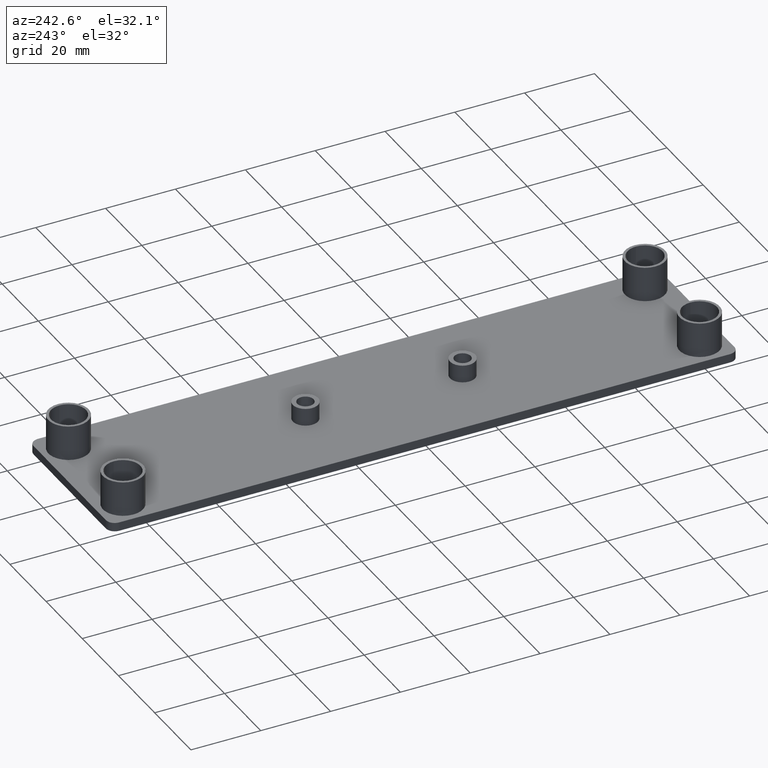
[diagram: clean part render]
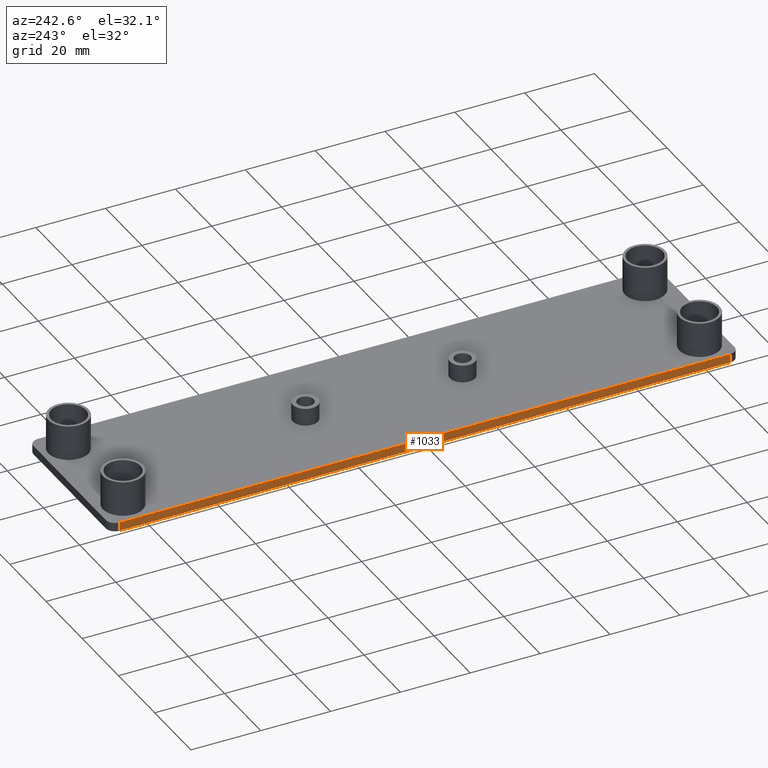
[diagram: same view with one face highlighted and labeled with its STEP entity id]
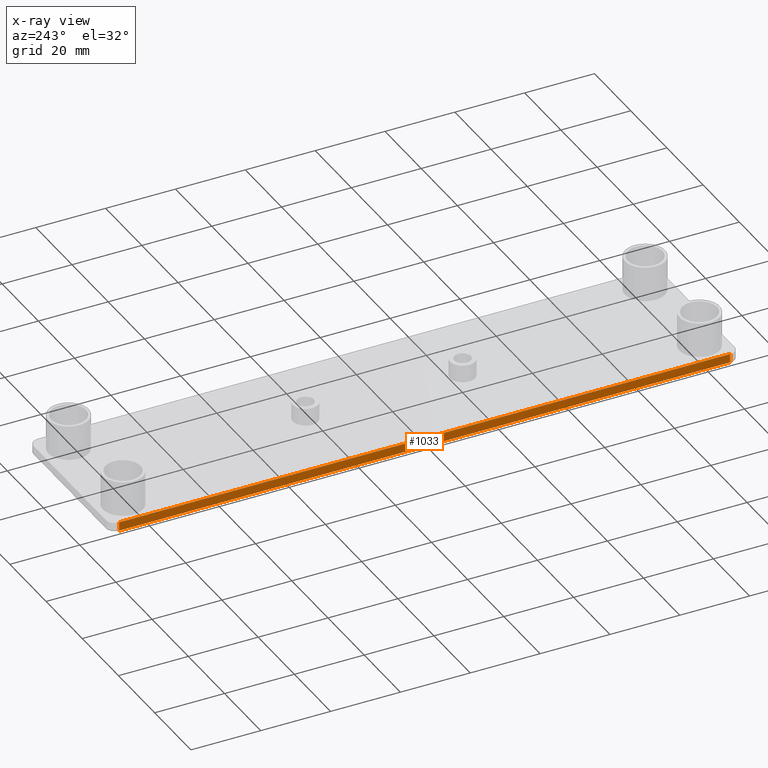
[diagram: x-ray of the same camera — body ghosted, the highlighted face saturated]
A machine part, auxiliary view. The second image highlights one B-rep face of the part: STEP entity #1033.
The next image is the same camera in x-ray: the body ghosted, the highlighted face saturated — about 0% of this face is hidden behind the body in this view.
In plain terms, the highlighted planar face has unit normal (1, 0, 0).
Its self-contained STEP definition (entity closure, byte-faithful):
#799=CARTESIAN_POINT('',(-22.499973999906160,-65.000000999730219,-2.500000000000000));
#800=VERTEX_POINT('',#799);
#808=CARTESIAN_POINT('',(-22.499973999906160,109.999999999549800,-2.500000000000000));
#809=VERTEX_POINT('',#808);
#810=CARTESIAN_POINT('',(-22.499973999906160,109.999999999549800,-2.500000000000000));
#811=DIRECTION('',(0.0,-1.0,0.0));
#812=VECTOR('',#811,175.000000999280020);
#813=LINE('',#810,#812);
#814=EDGE_CURVE('',#809,#800,#813,.T.);
#841=CARTESIAN_POINT('',(-22.499973999906160,-65.000000999730219,0.0));
#842=VERTEX_POINT('',#841);
#850=CARTESIAN_POINT('',(-22.499973999906160,-65.000000999730219,0.0));
#851=DIRECTION('',(0.0,0.0,-1.0));
#852=VECTOR('',#851,2.500000000000000);
#853=LINE('',#850,#852);
#854=EDGE_CURVE('',#842,#800,#853,.T.);
#881=CARTESIAN_POINT('',(-22.499973999906160,109.999999999549800,0.0));
#882=VERTEX_POINT('',#881);
#890=CARTESIAN_POINT('',(-22.499973999906160,109.999999999549800,0.0));
#891=DIRECTION('',(0.0,-1.0,0.0));
#892=VECTOR('',#891,175.000000999280020);
#893=LINE('',#890,#892);
#894=EDGE_CURVE('',#882,#842,#893,.T.);
#991=CARTESIAN_POINT('',(-22.499973999906160,109.999999999549800,0.0));
#992=DIRECTION('',(0.0,0.0,-1.0));
#993=VECTOR('',#992,2.500000000000000);
#994=LINE('',#991,#993);
#995=EDGE_CURVE('',#882,#809,#994,.T.);
#1022=CARTESIAN_POINT('',(-22.499973999906160,112.499999999549800,0.0));
#1023=DIRECTION('',(1.0,0.0,0.0));
#1024=DIRECTION('',(0.0,-1.0,0.0));
#1025=AXIS2_PLACEMENT_3D('',#1022,#1023,#1024);
#1026=PLANE('',#1025);
#1027=ORIENTED_EDGE('',*,*,#995,.T.);
#1028=ORIENTED_EDGE('',*,*,#814,.T.);
#1029=ORIENTED_EDGE('',*,*,#854,.F.);
#1030=ORIENTED_EDGE('',*,*,#894,.F.);
#1031=EDGE_LOOP('',(#1027,#1028,#1029,#1030));
#1032=FACE_OUTER_BOUND('',#1031,.T.);
#1033=ADVANCED_FACE('',(#1032),#1026,.F.);